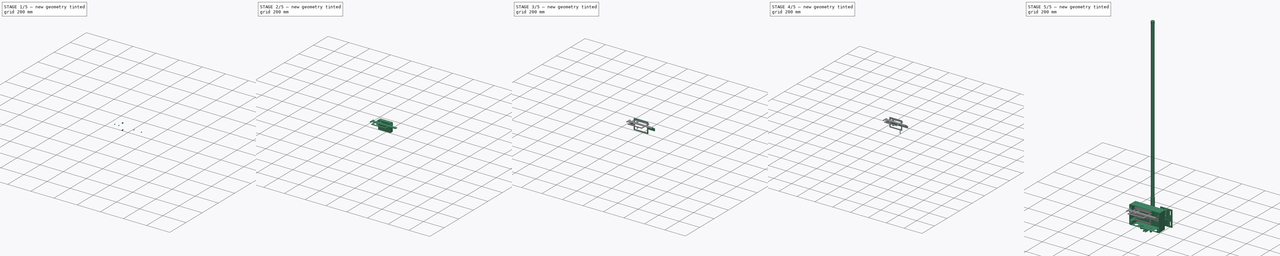
[diagram: build sequence overview — one tinted view per stage of 5, left to right]
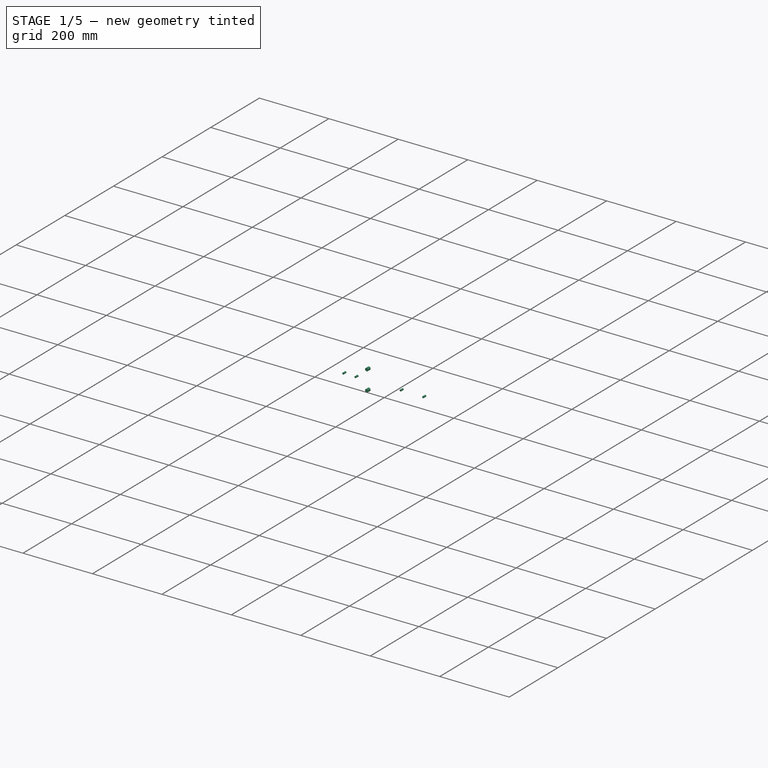
[diagram: stage 1 of 5 — iso view after this stage's code; geometry added in this stage tinted green]
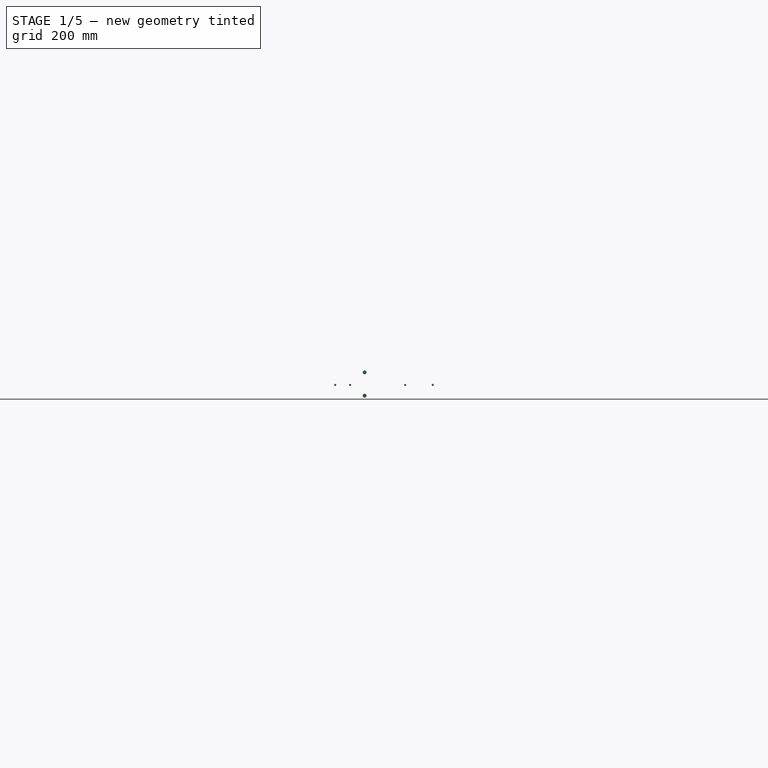
[diagram: stage 1 of 5 — front view after this stage's code; geometry added in this stage tinted green]
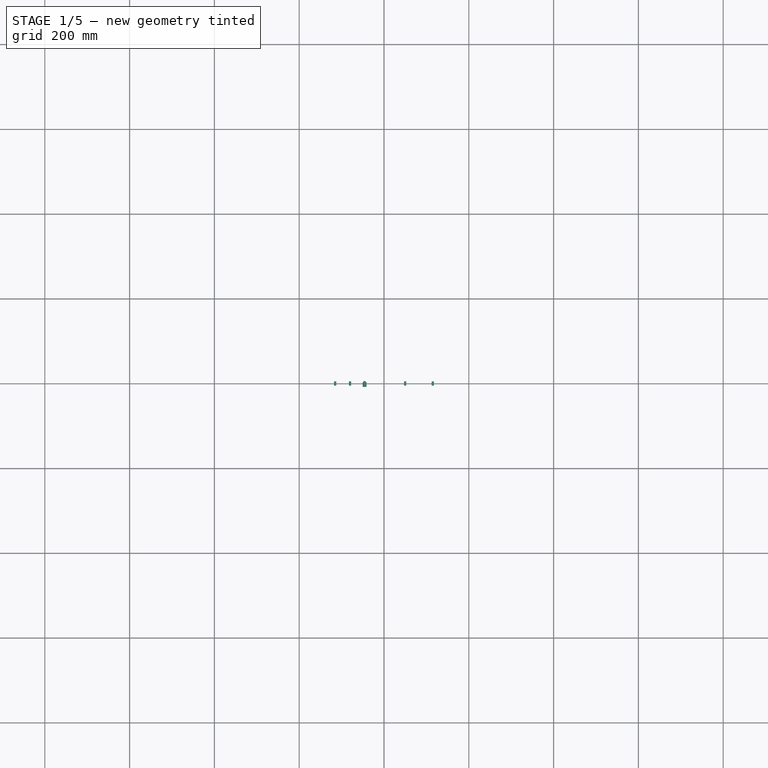
[diagram: stage 1 of 5 — top view after this stage's code; geometry added in this stage tinted green]
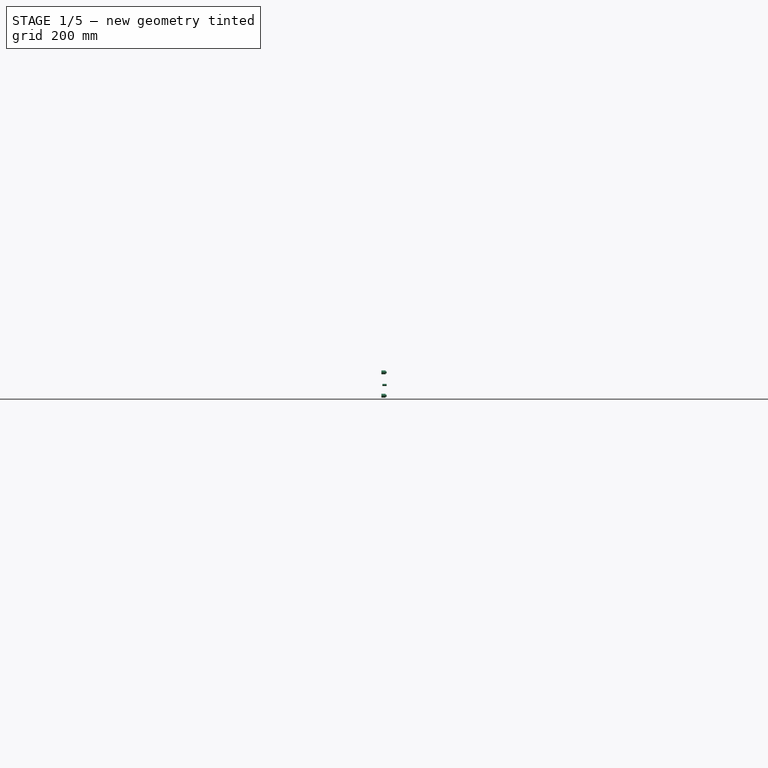
[diagram: stage 1 of 5 — right view after this stage's code; geometry added in this stage tinted green]
FCSTD DOCUMENT  (FreeCAD 0.20R29410 (Git))
Label: gateWayModuleDec_13_2022
License: All rights reserved
LicenseURL: http://en.wikipedia.org/wiki/All_rights_reserved
objects: Part::Cylinder×45, Part::Feature×21, Part::MultiFuse×20, Part::Box×15, Part::Cut×9, App::Part×2, Sketcher::SketchObject×1, Part::Extrusion×1
note: 112 computed .brp shape members not serialized (recipe doc carries the construction recipe); baked Part::Feature solids carry a one-line shape summary decoded from their .brp

FEATURE [Part::Cylinder] Cylinder057
  Angle = 360
  AttacherType = Attacher::AttachEngine3D
  FirstAngle = 0
  Height = 10
  Placement = pos=(-115,0,-31) rot=(1,0,0;1.5708rad)
  Radius = 2.5
  SecondAngle = 0
FEATURE [Part::Cylinder] Cylinder058
  Angle = 360
  AttacherType = Attacher::AttachEngine3D
  FirstAngle = 0
  Height = 10
  Placement = pos=(115,0,-31) rot=(1,0,0;1.5708rad)
  Radius = 2.5
  SecondAngle = 0
FEATURE [Part::Cylinder] Cylinder059
  Angle = 360
  AttacherType = Attacher::AttachEngine3D
  FirstAngle = 0
  Height = 10
  Placement = pos=(-80,0,-31) rot=(1,0,0;1.5708rad)
  Radius = 2.5
  SecondAngle = 0
FEATURE [Part::Cylinder] Cylinder060
  Angle = 360
  AttacherType = Attacher::AttachEngine3D
  FirstAngle = 0
  Height = 10
  Placement = pos=(50,0,-31) rot=(1,0,0;1.5708rad)
  Radius = 2.5
  SecondAngle = 0
FEATURE [Part::Cylinder] Cylinder061
  Angle = 360
  AttacherType = Attacher::AttachEngine3D
  FirstAngle = 0
  Height = 10
  Placement = pos=(-45.75,0,-56.3) rot=(1,0,0;1.5708rad)
  Radius = 2.5
  SecondAngle = 0
FEATURE [Part::Cylinder] Cylinder062
  Angle = 360
  AttacherType = Attacher::AttachEngine3D
  FirstAngle = 0
  Height = 10
  Placement = pos=(-45.75,0,-1.3) rot=(1,0,0;1.5708rad)
  Radius = 2.5
  SecondAngle = 0
FEATURE [Part::Cylinder] Cylinder063
  Angle = 360
  AttacherType = Attacher::AttachEngine3D
  FirstAngle = 0
  Height = 10
  Placement = pos=(-45.75,0,-56.3) rot=(1,0,0;1.5708rad)
  Radius = 4.5
  SecondAngle = 0
FEATURE [Part::Cylinder] Cylinder064
  Angle = 360
  AttacherType = Attacher::AttachEngine3D
  FirstAngle = 0
  Height = 10
  Placement = pos=(-45.75,0,-1.3) rot=(1,0,0;1.5708rad)
  Radius = 4.5
  SecondAngle = 0
FEATURE [Part::Cylinder] Cylinder068
  Angle = 360
  AttacherType = Attacher::AttachEngine3D
  FirstAngle = 0
  Height = 10
  Placement = pos=(-115,0,-31) rot=(1,0,0;1.5708rad)
  Radius = 2.5
  SecondAngle = 0
FEATURE [Part::Cylinder] Cylinder069
  Angle = 360
  AttacherType = Attacher::AttachEngine3D
  FirstAngle = 0
  Height = 10
  Placement = pos=(115,0,-31) rot=(1,0,0;1.5708rad)
  Radius = 2.5
  SecondAngle = 0
FEATURE [Part::Cylinder] Cylinder070
  Angle = 360
  AttacherType = Attacher::AttachEngine3D
  FirstAngle = 0
  Height = 10
  Placement = pos=(-80,0,-31) rot=(1,0,0;1.5708rad)
  Radius = 2.5
  SecondAngle = 0
FEATURE [Part::Cylinder] Cylinder071
  Angle = 360
  AttacherType = Attacher::AttachEngine3D
  FirstAngle = 0
  Height = 10
  Placement = pos=(50,0,-31) rot=(1,0,0;1.5708rad)
  Radius = 2.5
  SecondAngle = 0
FEATURE [Part::Cylinder] Cylinder072
  Angle = 360
  AttacherType = Attacher::AttachEngine3D
  FirstAngle = 0
  Height = 10
  Placement = pos=(-45.75,0,-56.3) rot=(1,0,0;1.5708rad)
  Radius = 2.5
  SecondAngle = 0
FEATURE [Part::Cylinder] Cylinder073
  Angle = 360
  AttacherType = Attacher::AttachEngine3D
  FirstAngle = 0
  Height = 10
  Placement = pos=(-45.75,0,-1.3) rot=(1,0,0;1.5708rad)
  Radius = 2.5
  SecondAngle = 0
FEATURE [Part::MultiFuse] Fusion022  label="M3HeatSetInserts002"
  Placement = pos=(0,5.1,0) rot=(0,0,1;0rad)
  Shapes = -> [Cylinder062,Cylinder058,Cylinder059,Cylinder060,Cylinder061,Cylinder057]
FEATURE [Part::MultiFuse] Fusion023  label="M3BltInput001"
  Placement = pos=(0,2.7,0) rot=(0,0,1;0rad)
  Shapes = -> [Cylinder064,Cylinder063]
FEATURE [Part::MultiFuse] Fusion025  label="M3HeatSetInserts003"
  Placement = pos=(0,5.1,0) rot=(0,0,1;0rad)
  Shapes = -> [Cylinder073,Cylinder069,Cylinder070,Cylinder071,Cylinder072,Cylinder068]
FEATURE [Part::MultiFuse] Fusion026
  Shapes = -> [Fusion022,Fusion023]
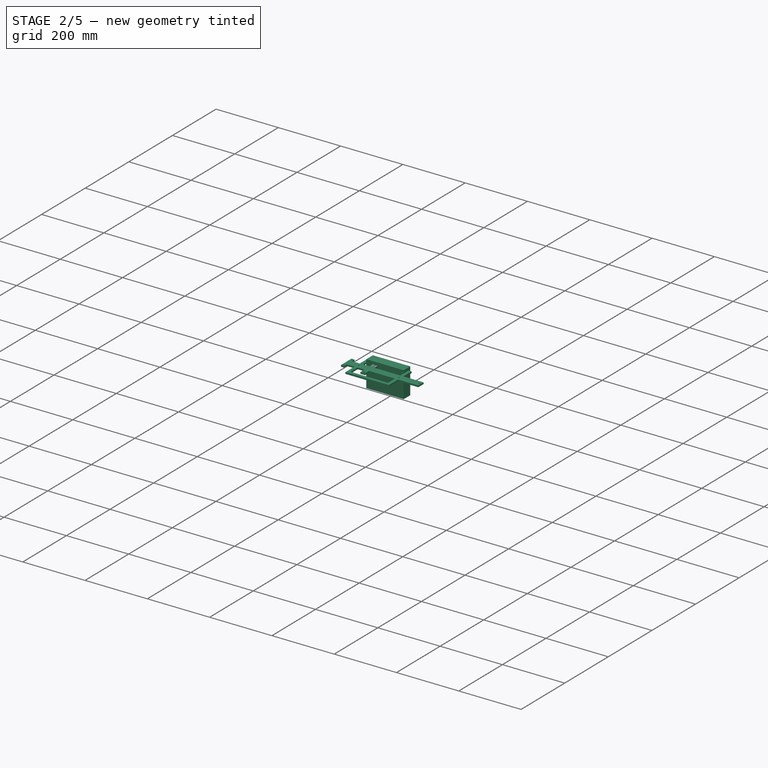
[diagram: stage 2 of 5 — iso view after this stage's code; geometry added in this stage tinted green]
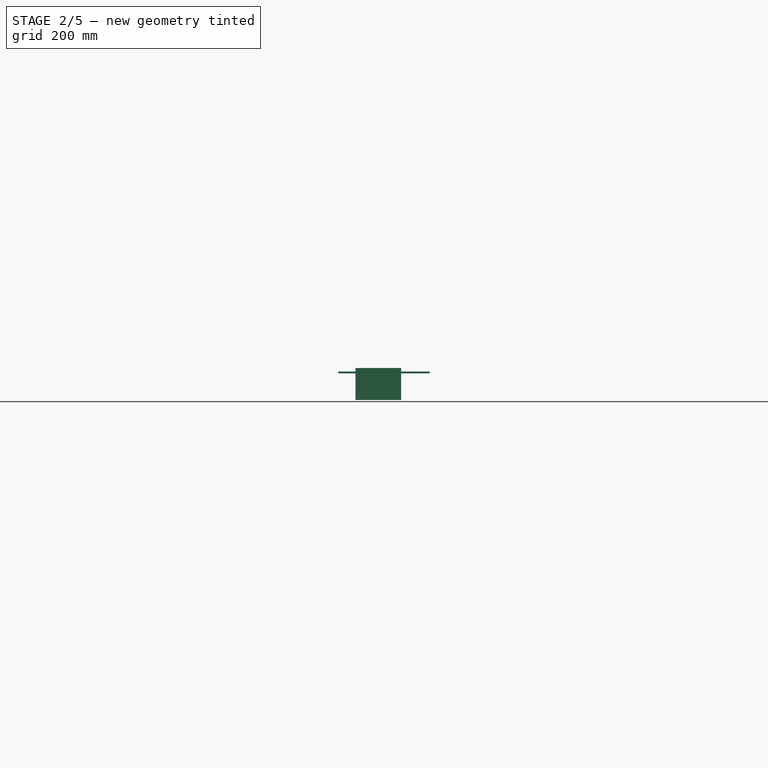
[diagram: stage 2 of 5 — front view after this stage's code; geometry added in this stage tinted green]
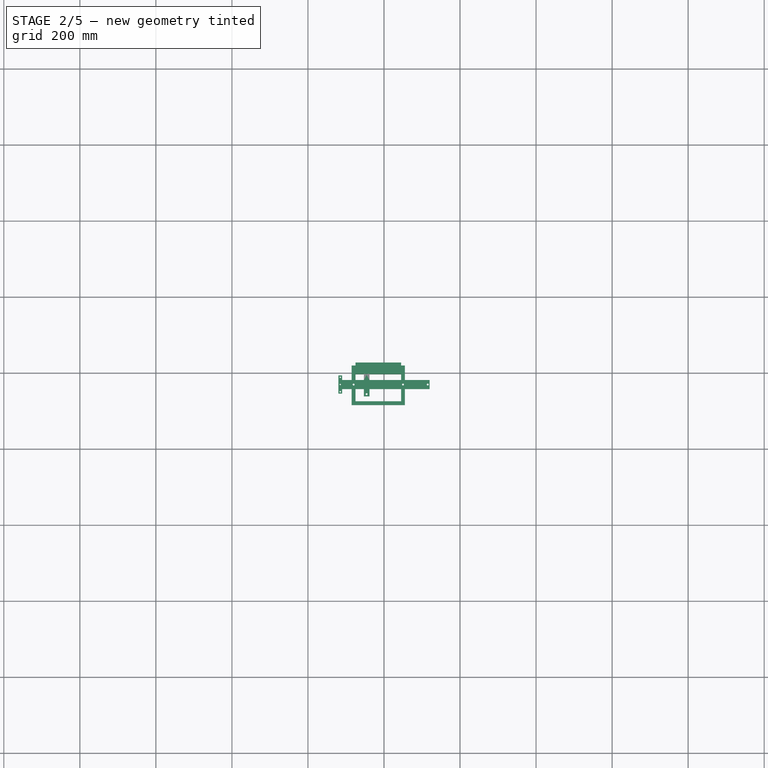
[diagram: stage 2 of 5 — top view after this stage's code; geometry added in this stage tinted green]
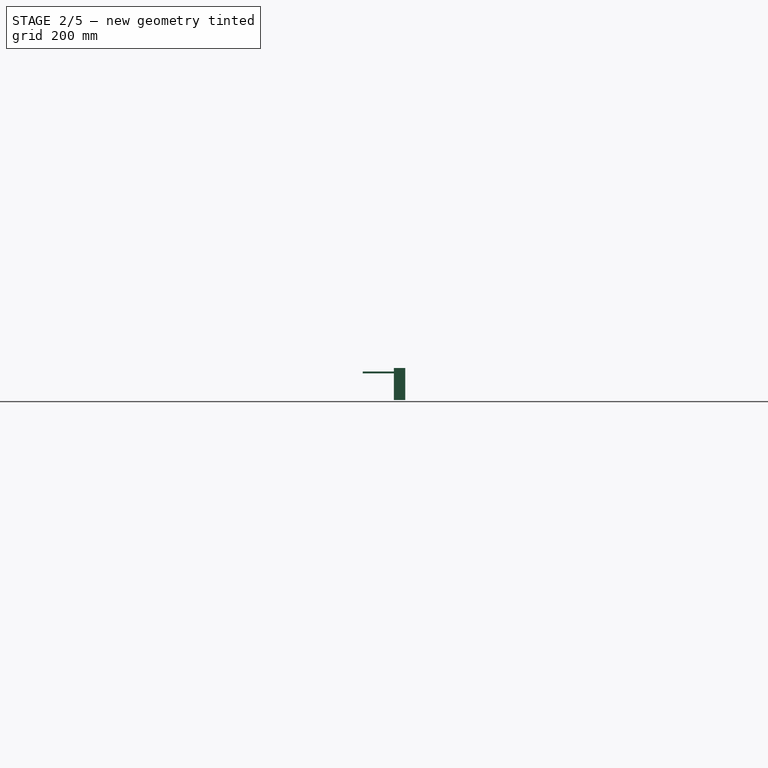
[diagram: stage 2 of 5 — right view after this stage's code; geometry added in this stage tinted green]
FEATURE [Part::Box] Box008  label="GatewayCut"
  AttacherType = Attacher::AttachEngine3D
  Height = 84
  Length = 120
  Placement = pos=(-75,-3.2,-75) rot=(0,0,1;0rad)
  Width = 30
FEATURE [Part::Box] Box009  label="Cube007"
  AttacherType = Attacher::AttachEngine3D
  Height = 24
  Length = 240
  Placement = pos=(-120,0,-43) rot=(0,0,1;0rad)
  Width = 5
FEATURE [Part::Box] Box010  label="Cube008"
  AttacherType = Attacher::AttachEngine3D
  Height = 38
  Length = 140
  Placement = pos=(-85,0,-19) rot=(0,0,1;0rad)
  Width = 5
FEATURE [Part::Box] Box011  label="Cube009"
  AttacherType = Attacher::AttachEngine3D
  Height = 42
  Length = 140
  Placement = pos=(-85,0,-85) rot=(0,0,1;0rad)
  Width = 5
FEATURE [Part::Box] Box012  label="Cube010"
  AttacherType = Attacher::AttachEngine3D
  Height = 24
  Length = 140
  Placement = pos=(-85,0,-43) rot=(0,0,1;0rad)
  Width = 5
FEATURE [Part::Box] Box013  label="Cube011"
  AttacherType = Attacher::AttachEngine3D
  Height = 68
  Length = 15
  Placement = pos=(-53,0,-62) rot=(0,0,1;0rad)
  Width = 5
FEATURE [Part::Box] Box014  label="Cube012"
  AttacherType = Attacher::AttachEngine3D
  Height = 48
  Length = 10
  Placement = pos=(-120,0,-55) rot=(0,0,1;0rad)
  Width = 5
FEATURE [Part::Box] Box015  label="GatewayCut001"
  AttacherType = Attacher::AttachEngine3D
  Height = 84
  Length = 120
  Placement = pos=(-75,-3.2,-75) rot=(0,0,1;0rad)
  Width = 30
FEATURE [Part::Cylinder] Cylinder065
  Angle = 360
  AttacherType = Attacher::AttachEngine3D
  FirstAngle = 0
  Height = 10
  Placement = pos=(-115,0,-31) rot=(1,0,0;1.5708rad)
  Radius = 1.75
  SecondAngle = 0
FEATURE [Part::Cylinder] Cylinder066
  Angle = 360
  AttacherType = Attacher::AttachEngine3D
  FirstAngle = 0
  Height = 10
  Placement = pos=(-115,0,-50) rot=(1,0,0;1.5708rad)
  Radius = 1.9
  SecondAngle = 0
FEATURE [Part::Cylinder] Cylinder067
  Angle = 360
  AttacherType = Attacher::AttachEngine3D
  FirstAngle = 0
  Height = 10
  Placement = pos=(-115,0,-12) rot=(1,0,0;1.5708rad)
  Radius = 1.9
  SecondAngle = 0
FEATURE [Part::MultiFuse] Fusion020
  Shapes = -> [Box011,Box009,Box010]
FEATURE [Part::MultiFuse] Fusion021
  Shapes = -> [Box012,Box013]
FEATURE [Part::MultiFuse] Fusion024  label="sideCuts001"
  Placement = pos=(0,9.8,0) rot=(0,0,1;0rad)
  Shapes = -> [Cylinder065,Cylinder066,Cylinder067]
FEATURE [Part::Cut] Cut005  label="CornerBase001"
  Base = -> Box014
  Placement = pos=(0,0,0) rot=(1,0,0;4.71239rad)
  Tool = -> Fusion024
FEATURE [Part::Cut] Cut007
  Base = -> Fusion020
  Tool = -> Fusion025
FEATURE [Part::Cut] Cut008  label="MainBase001"
  Base = -> Cut007
  Placement = pos=(0,0,0) rot=(1,0,0;4.71239rad)
  Tool = -> Box015
FEATURE [Part::Cut] Cut006  label="PowerBase001"
  Base = -> Fusion021
  Placement = pos=(0,0,0) rot=(1,0,0;4.71239rad)
  Tool = -> Fusion026
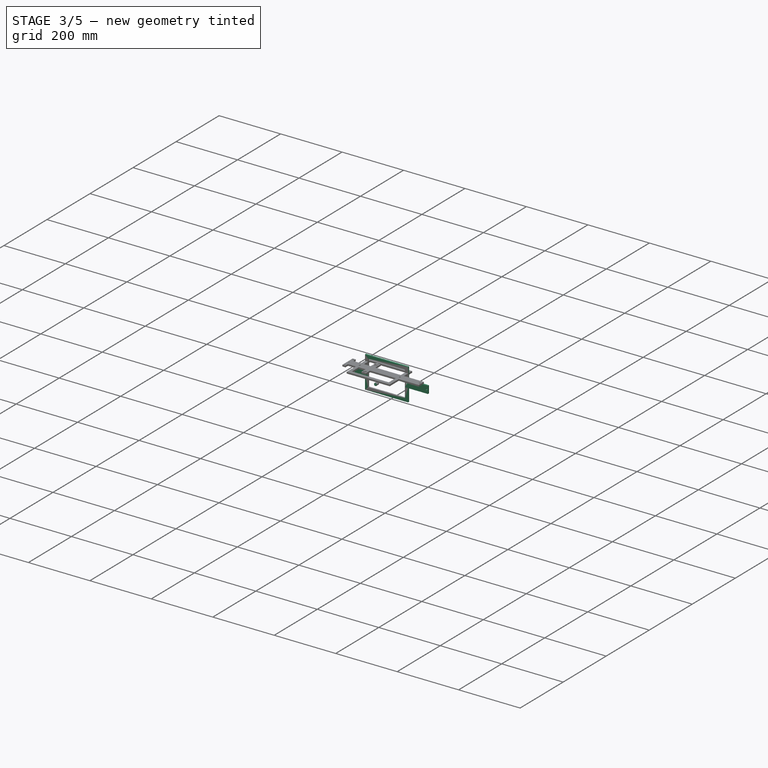
[diagram: stage 3 of 5 — iso view after this stage's code; geometry added in this stage tinted green]
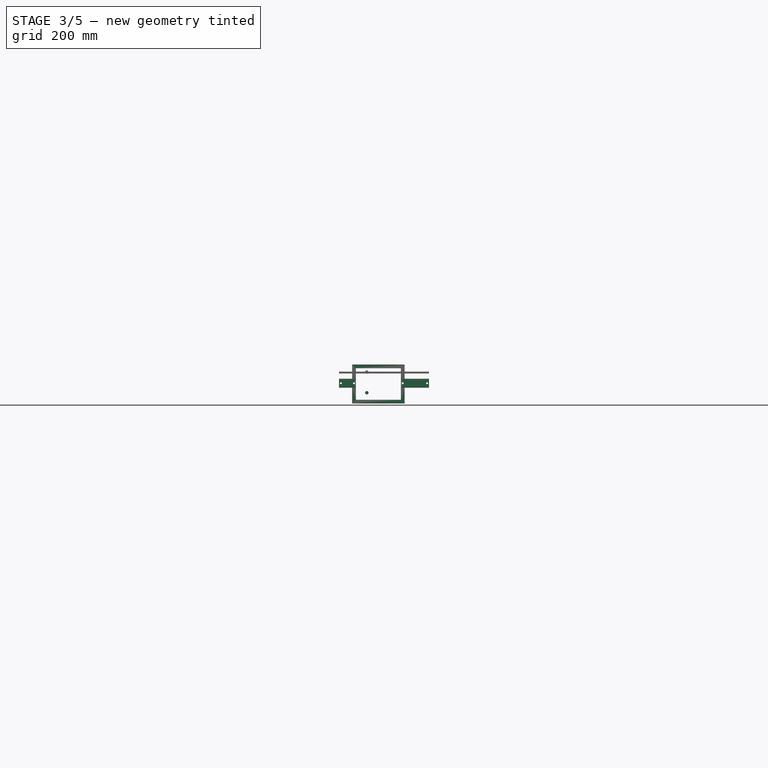
[diagram: stage 3 of 5 — front view after this stage's code; geometry added in this stage tinted green]
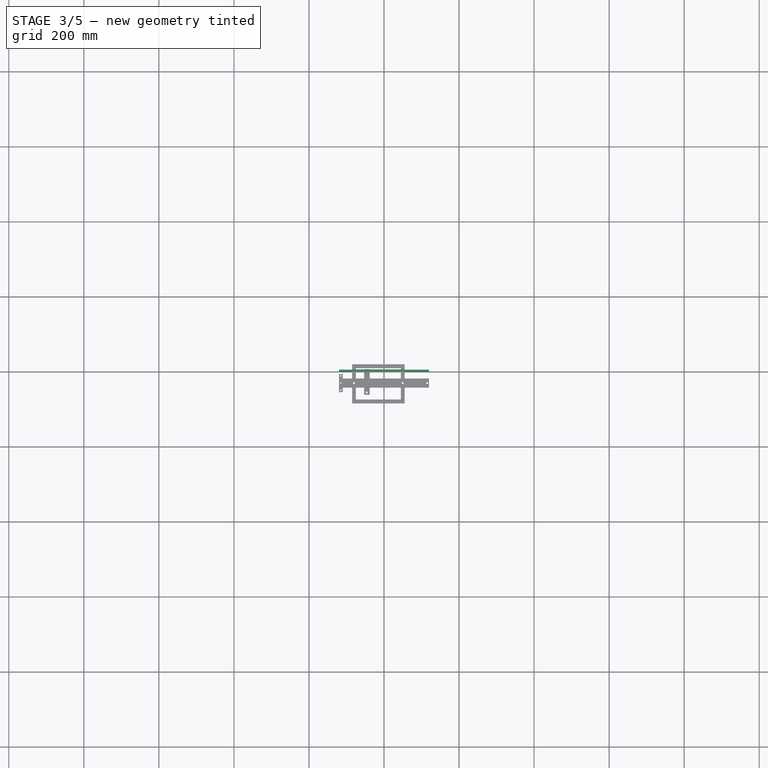
[diagram: stage 3 of 5 — top view after this stage's code; geometry added in this stage tinted green]
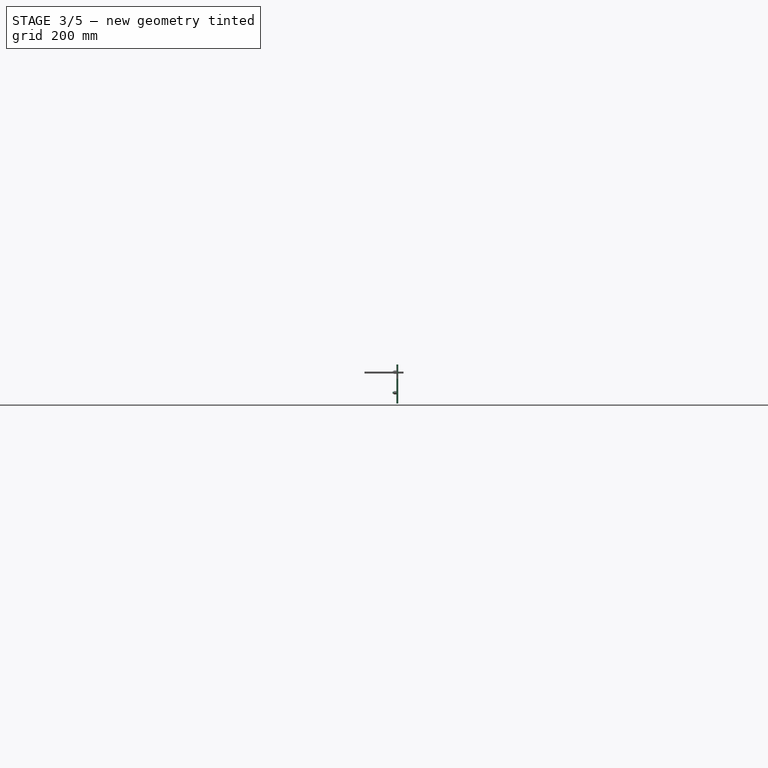
[diagram: stage 3 of 5 — right view after this stage's code; geometry added in this stage tinted green]
FEATURE [Part::Feature] Part__Feature  label="AN-23B_AN-23BP-01"
  shape: bbox 160 x 71.5 x 260 mm, 302 faces (baked)
FEATURE [Part::Feature] Part__Feature034  label="AN-23C_AN-23C-01"
  shape: bbox 160.5 x 20 x 260.5 mm, 243 faces (baked)
FEATURE [Part::Feature] Part__Feature035  label="cross recessed countersunk head screw_jis_JIS 1111 Cross recessed countersunk head screw - M4 x 32 - Z --24CSST"
  Placement = pos=(245.578,1.4369,155.7) rot=(0.642635,-0.642635,0.417181;3.93205rad)
  shape: bbox 8.4 x 32 x 8.4 mm, 32 faces (baked)
FEATURE [Part::Feature] Part__Feature036  label="cross recessed countersunk head screw_jis_JIS 1111 Cross recessed countersunk head screw - M4 x 32 - Z --24CSST001"
  Placement = pos=(245.578,1.4369,15.6996) rot=(0.610522,-0.610522,0.504506;4.07608rad)
  shape: bbox 8.4 x 32 x 8.4 mm, 32 faces (baked)
FEATURE [Part::Feature] Part__Feature037  label="cross recessed countersunk head screw_jis_JIS 1111 Cross recessed countersunk head screw - M4 x 32 - Z --24CSST002"
  Placement = pos=(5.5776,1.4369,15.6996) rot=(0.641113,-0.641113,0.421839;3.93997rad)
  shape: bbox 8.4 x 32 x 8.4 mm, 32 faces (baked)
FEATURE [Part::Feature] Part__Feature038  label="cross recessed countersunk head screw_jis_JIS 1111 Cross recessed countersunk head screw - M4 x 32 - Z --24CSST003"
  Placement = pos=(5.5776,1.4369,155.7) rot=(0.666667,-0.666667,0.333333;3.78509rad)
  shape: bbox 8.4 x 32 x 8.4 mm, 32 faces (baked)
FEATURE [App::Part] SCREWS_036_4  label="SCREWS-036-4"
  Group = -> [Part__Feature035,Part__Feature036,Part__Feature037,Part__Feature038]
  Origin = -> Origin
  Placement = pos=(85.6996,18.1356,-125.578) rot=(0,-1,0;1.5708rad)
FEATURE [Part::Feature] Part__Feature039  label="GASKET-123-01"
  Placement = pos=(0,1.04,0) rot=(0,0,1;0rad)
  shape: bbox 157.7 x 1.5 x 257.7 mm, 98 faces (baked)
FEATURE [App::Part] AN_23P_01  label="AN-23P-01"
  Group = -> [Part__Feature,Part__Feature034,SCREWS_036_4,Part__Feature039]
  Origin = -> Origin001
FEATURE [Part::Box] Box001  label="Cube"
  AttacherType = Attacher::AttachEngine3D
  Height = 24
  Length = 240
  Placement = pos=(-120,0,-43) rot=(0,0,1;0rad)
  Width = 5
FEATURE [Part::Box] Box002  label="Cube001"
  AttacherType = Attacher::AttachEngine3D
  Height = 38
  Length = 140
  Placement = pos=(-85,0,-19) rot=(0,0,1;0rad)
  Width = 5
FEATURE [Part::Box] Box003  label="Cube002"
  AttacherType = Attacher::AttachEngine3D
  Height = 42
  Length = 140
  Placement = pos=(-85,0,-85) rot=(0,0,1;0rad)
  Width = 5
FEATURE [Part::MultiFuse] Fusion013
  Shapes = -> [Box003,Box001,Box002]
FEATURE [Part::Cylinder] Cylinder044
  Angle = 360
  AttacherType = Attacher::AttachEngine3D
  FirstAngle = 0
  Height = 10
  Placement = pos=(-45.75,0,-56.3) rot=(1,0,0;1.5708rad)
  Radius = 2.5
  SecondAngle = 0
FEATURE [Part::Cylinder] Cylinder045
  Angle = 360
  AttacherType = Attacher::AttachEngine3D
  FirstAngle = 0
  Height = 10
  Placement = pos=(-45.75,0,-1.3) rot=(1,0,0;1.5708rad)
  Radius = 2.5
  SecondAngle = 0
FEATURE [Part::Cylinder] Cylinder046
  Angle = 360
  AttacherType = Attacher::AttachEngine3D
  FirstAngle = 0
  Height = 10
  Placement = pos=(-45.75,0,-56.3) rot=(1,0,0;1.5708rad)
  Radius = 4.5
  SecondAngle = 0
FEATURE [Part::Cylinder] Cylinder047
  Angle = 360
  AttacherType = Attacher::AttachEngine3D
  FirstAngle = 0
  Height = 10
  Placement = pos=(-45.75,0,-1.3) rot=(1,0,0;1.5708rad)
  Radius = 4.5
  SecondAngle = 0
FEATURE [Part::MultiFuse] Fusion016  label="M3BltInput"
  Placement = pos=(0,2.7,0) rot=(0,0,1;0rad)
  Shapes = -> [Cylinder047,Cylinder046]
FEATURE [Part::Cylinder] Cylinder051
  Angle = 360
  AttacherType = Attacher::AttachEngine3D
  FirstAngle = 0
  Height = 10
  Placement = pos=(-115,0,-31) rot=(1,0,0;1.5708rad)
  Radius = 2.5
  SecondAngle = 0
FEATURE [Part::Cylinder] Cylinder052
  Angle = 360
  AttacherType = Attacher::AttachEngine3D
  FirstAngle = 0
  Height = 10
  Placement = pos=(115,0,-31) rot=(1,0,0;1.5708rad)
  Radius = 2.5
  SecondAngle = 0
FEATURE [Part::Cylinder] Cylinder053
  Angle = 360
  AttacherType = Attacher::AttachEngine3D
  FirstAngle = 0
  Height = 10
  Placement = pos=(-80,0,-31) rot=(1,0,0;1.5708rad)
  Radius = 2.5
  SecondAngle = 0
FEATURE [Part::Cylinder] Cylinder054
  Angle = 360
  AttacherType = Attacher::AttachEngine3D
  FirstAngle = 0
  Height = 10
  Placement = pos=(50,0,-31) rot=(1,0,0;1.5708rad)
  Radius = 2.5
  SecondAngle = 0
FEATURE [Part::Cylinder] Cylinder055
  Angle = 360
  AttacherType = Attacher::AttachEngine3D
  FirstAngle = 0
  Height = 10
  Placement = pos=(-45.75,0,-56.3) rot=(1,0,0;1.5708rad)
  Radius = 2.5
  SecondAngle = 0
FEATURE [Part::Cylinder] Cylinder056
  Angle = 360
  AttacherType = Attacher::AttachEngine3D
  FirstAngle = 0
  Height = 10
  Placement = pos=(-45.75,0,-1.3) rot=(1,0,0;1.5708rad)
  Radius = 2.5
  SecondAngle = 0
FEATURE [Part::MultiFuse] Fusion018  label="M3HeatSetInserts001"
  Placement = pos=(0,5.1,0) rot=(0,0,1;0rad)
  Shapes = -> [Cylinder056,Cylinder052,Cylinder053,Cylinder054,Cylinder055,Cylinder051]
FEATURE [Part::Cut] Cut003
  Base = -> Fusion013
  Tool = -> Fusion018
FEATURE [Part::Cut] Cut004  label="MainBase"
  Base = -> Cut003
  Tool = -> Box008
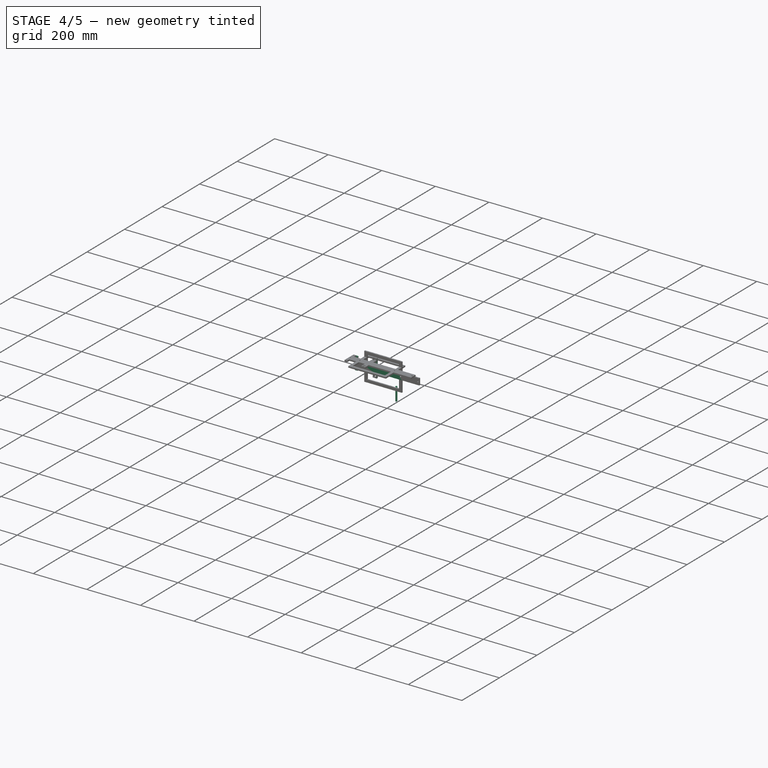
[diagram: stage 4 of 5 — iso view after this stage's code; geometry added in this stage tinted green]
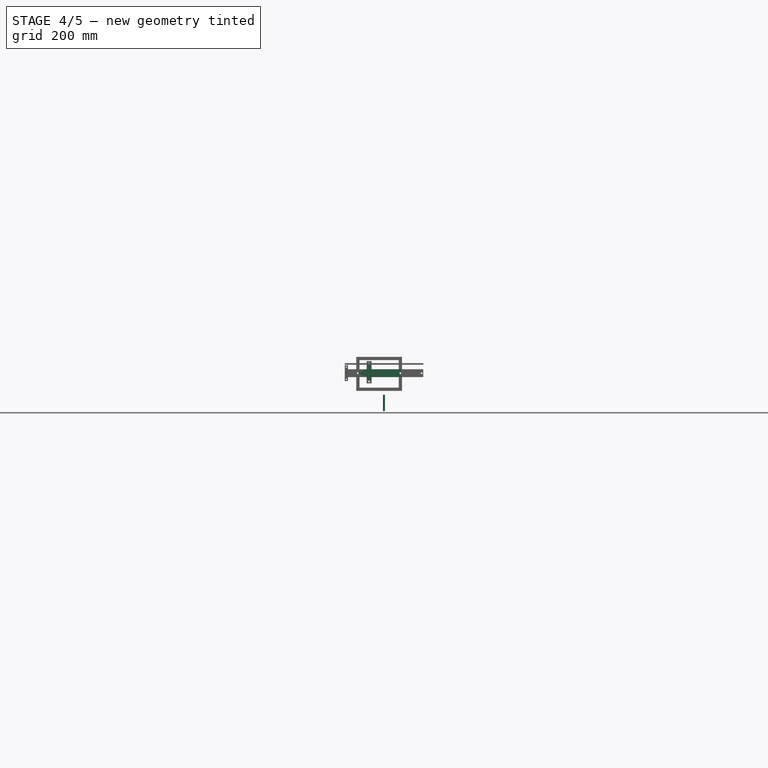
[diagram: stage 4 of 5 — front view after this stage's code; geometry added in this stage tinted green]
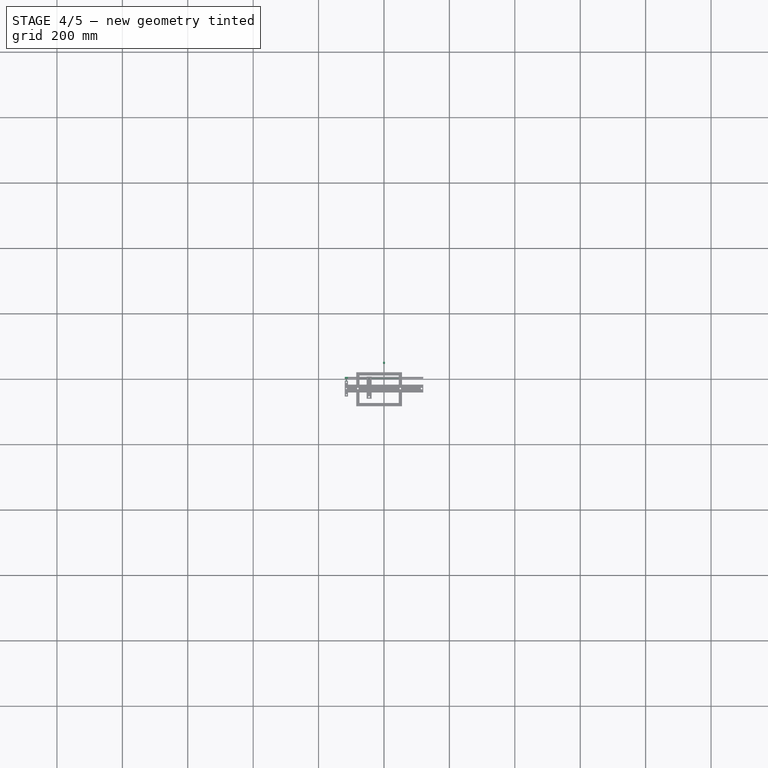
[diagram: stage 4 of 5 — top view after this stage's code; geometry added in this stage tinted green]
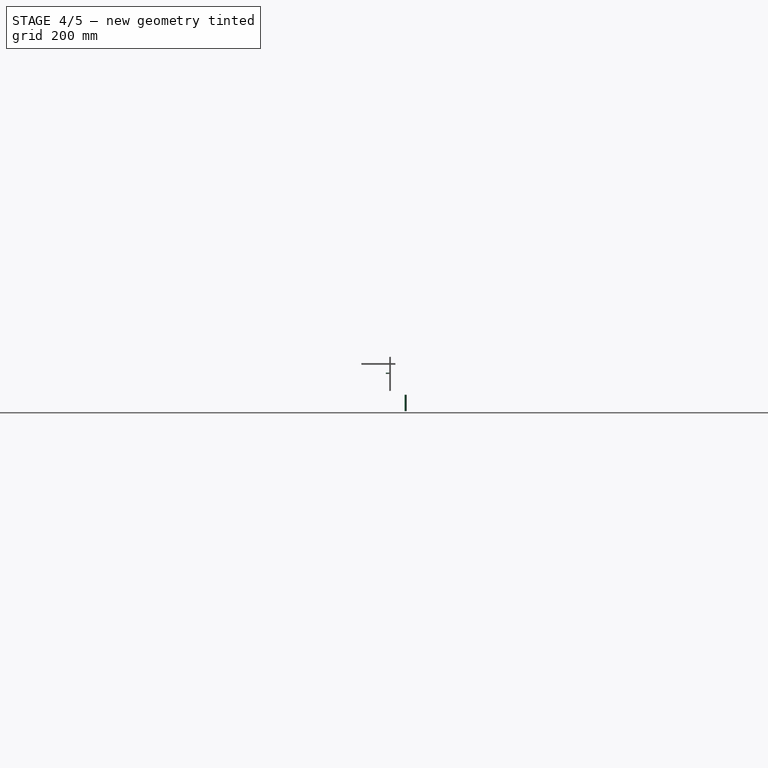
[diagram: stage 4 of 5 — right view after this stage's code; geometry added in this stage tinted green]
FEATURE [Part::Cylinder] Cylinder038  label="m5Cut001"
  Angle = 360
  AttacherType = Attacher::AttachEngine3D
  FirstAngle = 0
  Height = 50
  Placement = pos=(0,50,-147) rot=(0,0,1;0rad)
  Radius = 3.2
  SecondAngle = 0
FEATURE [Part::Box] Box005  label="Cube004"
  AttacherType = Attacher::AttachEngine3D
  Height = 24
  Length = 140
  Placement = pos=(-85,0,-43) rot=(0,0,1;0rad)
  Width = 5
FEATURE [Part::Box] Box006  label="Cube005"
  AttacherType = Attacher::AttachEngine3D
  Height = 68
  Length = 15
  Placement = pos=(-53,0,-62) rot=(0,0,1;0rad)
  Width = 5
FEATURE [Part::MultiFuse] Fusion014
  Shapes = -> [Box005,Box006]
FEATURE [Part::Cylinder] Cylinder039  label="Cylinder"
  Angle = 360
  AttacherType = Attacher::AttachEngine3D
  FirstAngle = 0
  Height = 10
  Placement = pos=(-115,0,-31) rot=(1,0,0;1.5708rad)
  Radius = 2
  SecondAngle = 0
FEATURE [Part::Cylinder] Cylinder040
  Angle = 360
  AttacherType = Attacher::AttachEngine3D
  FirstAngle = 0
  Height = 10
  Placement = pos=(-115,0,-31) rot=(1,0,0;1.5708rad)
  Radius = 2.5
  SecondAngle = 0
FEATURE [Part::Cylinder] Cylinder041
  Angle = 360
  AttacherType = Attacher::AttachEngine3D
  FirstAngle = 0
  Height = 10
  Placement = pos=(115,0,-31) rot=(1,0,0;1.5708rad)
  Radius = 2.5
  SecondAngle = 0
FEATURE [Part::Cylinder] Cylinder042
  Angle = 360
  AttacherType = Attacher::AttachEngine3D
  FirstAngle = 0
  Height = 10
  Placement = pos=(-80,0,-31) rot=(1,0,0;1.5708rad)
  Radius = 2.5
  SecondAngle = 0
FEATURE [Part::Cylinder] Cylinder043
  Angle = 360
  AttacherType = Attacher::AttachEngine3D
  FirstAngle = 0
  Height = 10
  Placement = pos=(50,0,-31) rot=(1,0,0;1.5708rad)
  Radius = 2.5
  SecondAngle = 0
FEATURE [Part::MultiFuse] Fusion015  label="M3HeatSetInserts"
  Placement = pos=(0,5.1,0) rot=(0,0,1;0rad)
  Shapes = -> [Cylinder045,Cylinder041,Cylinder042,Cylinder043,Cylinder044,Cylinder040]
FEATURE [Part::Box] Box007  label="Cube006"
  AttacherType = Attacher::AttachEngine3D
  Height = 48
  Length = 10
  Placement = pos=(-120,0,-55) rot=(0,0,1;0rad)
  Width = 5
FEATURE [Part::Cylinder] Cylinder048
  Angle = 360
  AttacherType = Attacher::AttachEngine3D
  FirstAngle = 0
  Height = 10
  Placement = pos=(-115,0,-31) rot=(1,0,0;1.5708rad)
  Radius = 1.75
  SecondAngle = 0
FEATURE [Part::Cylinder] Cylinder049
  Angle = 360
  AttacherType = Attacher::AttachEngine3D
  FirstAngle = 0
  Height = 10
  Placement = pos=(-115,0,-50) rot=(1,0,0;1.5708rad)
  Radius = 1.9
  SecondAngle = 0
FEATURE [Part::Cylinder] Cylinder050
  Angle = 360
  AttacherType = Attacher::AttachEngine3D
  FirstAngle = 0
  Height = 10
  Placement = pos=(-115,0,-12) rot=(1,0,0;1.5708rad)
  Radius = 1.9
  SecondAngle = 0
FEATURE [Part::MultiFuse] Fusion017  label="sideCuts"
  Placement = pos=(0,9.8,0) rot=(0,0,1;0rad)
  Shapes = -> [Cylinder048,Cylinder049,Cylinder050]
FEATURE [Part::Cut] Cut001  label="CornerBase"
  Base = -> Box007
  Tool = -> Fusion017
FEATURE [Part::MultiFuse] Fusion019
  Shapes = -> [Fusion015,Fusion016]
FEATURE [Part::Cut] Cut002  label="PowerBase"
  Base = -> Fusion014
  Tool = -> Fusion019
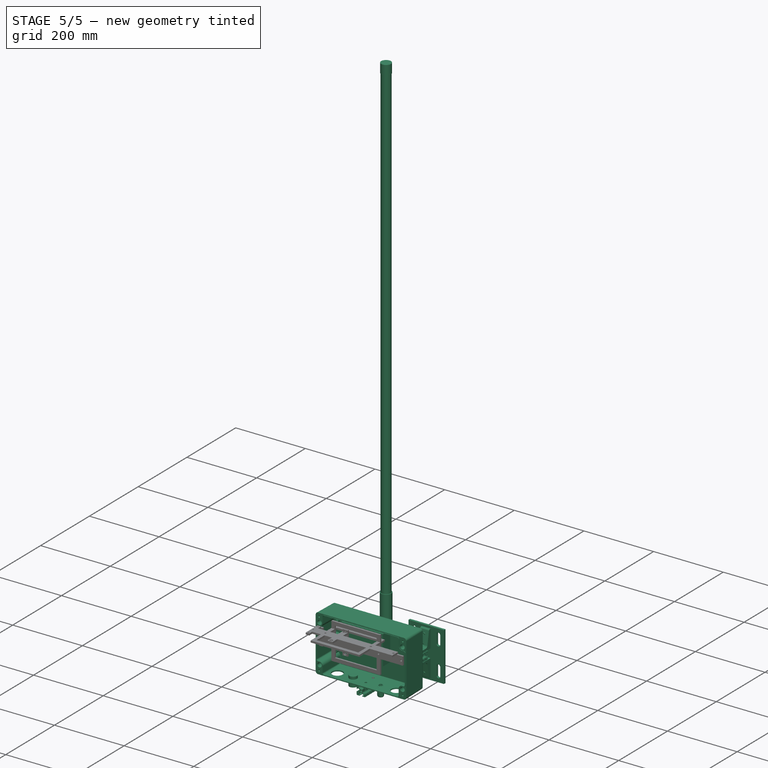
[diagram: stage 5 of 5 — iso view after this stage's code; geometry added in this stage tinted green]
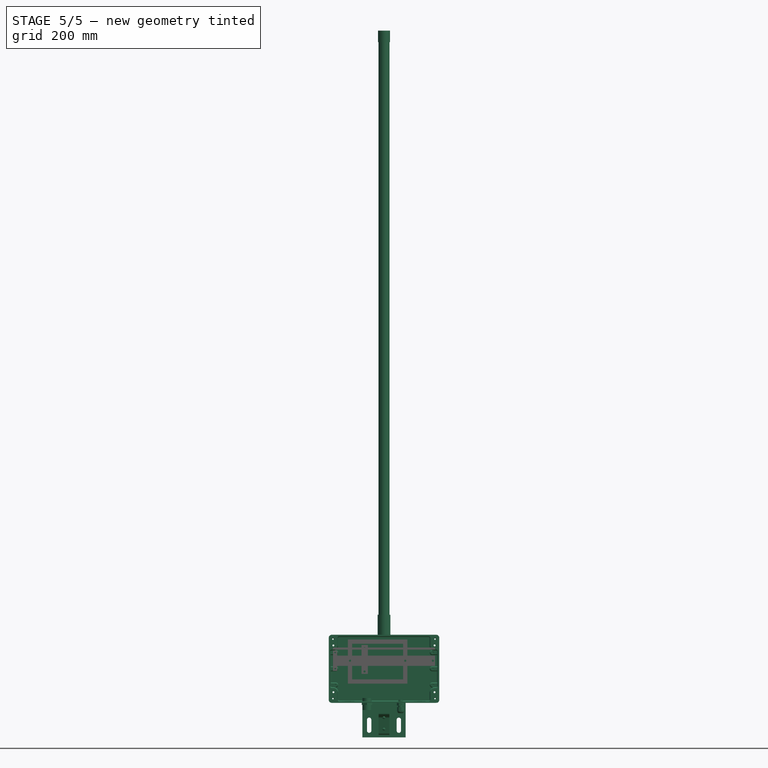
[diagram: stage 5 of 5 — front view after this stage's code; geometry added in this stage tinted green]
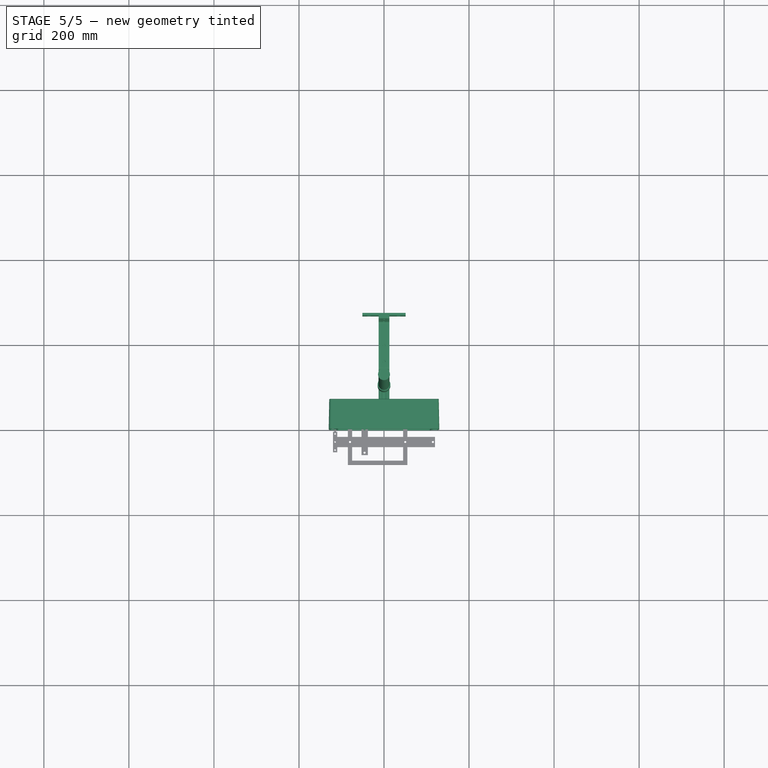
[diagram: stage 5 of 5 — top view after this stage's code; geometry added in this stage tinted green]
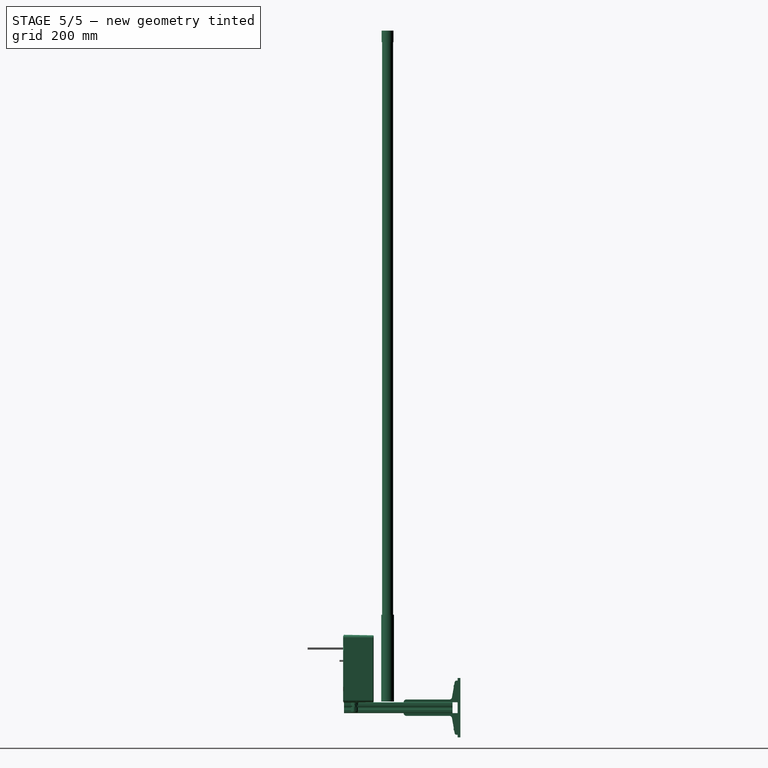
[diagram: stage 5 of 5 — right view after this stage's code; geometry added in this stage tinted green]
FEATURE [Part::Box] Box  label="Gateway"
  AttacherType = Attacher::AttachEngine3D
  Height = 84
  Length = 120
  Placement = pos=(-75,26,-75) rot=(0,0,1;0rad)
  Width = 30
FEATURE [Part::Cylinder] Cylinder030  label="loraAntenna"
  Angle = 360
  AttacherType = Attacher::AttachEngine3D
  FirstAngle = 0
  Height = 1390
  Radius = 13
  SecondAngle = 0
FEATURE [Part::Cylinder] Cylinder031  label="loraAntenna001"
  Angle = 360
  AttacherType = Attacher::AttachEngine3D
  FirstAngle = 0
  Height = 204
  Radius = 15
  SecondAngle = 0
FEATURE [Part::Cylinder] Cylinder032  label="loraAntenna002"
  Angle = 360
  AttacherType = Attacher::AttachEngine3D
  FirstAngle = 0
  Height = 27
  Placement = pos=(0,0,1363) rot=(0,0,1;0rad)
  Radius = 14
  SecondAngle = 0
FEATURE [Part::MultiFuse] Fusion006  label="loraAntenna003"
  Placement = pos=(0,0,188) rot=(0,0,1;0rad)
  Shapes = -> [Cylinder030,Cylinder032]
FEATURE [Part::MultiFuse] Fusion007  label="loraAntenna004"
  Placement = pos=(0,103,-127) rot=(0,0,1;0rad)
  Shapes = -> [Fusion006,Cylinder031]
FEATURE [Part::Feature] Part__Feature008  label="CUI_VGS-25W-5"
  Placement = pos=(-53,23,-36) rot=(1,0,0;3.14159rad)
  shape: bbox 55.36 x 25.53 x 90.37 mm, 2734 faces, 26 solids (baked)
FEATURE [Part::Feature] Part__Feature009  label="DCC-RJ6ST-310"
  Placement = pos=(-85,25,-123) rot=(0,0,1;0rad)
  shape: bbox 40.36 x 68.07 x 51.72 mm, 441 faces (baked)
FEATURE [Part::Feature] Part__Feature010  label="DCP-RJ6ST-F"
  Placement = pos=(-85,25,-123.5) rot=(0,1,0;3.14159rad)
  shape: bbox 40.26 x 40.33 x 38.85 mm, 485 faces, 2 solids (baked)
FEATURE [Part::Cylinder] Cylinder  label="plugIn"
  Angle = 360
  AttacherType = Attacher::AttachEngine3D
  FirstAngle = 0
  Height = 28.19
  Radius = 11
  SecondAngle = 0
FEATURE [Sketcher::SketchObject] Sketch
  FullyConstrained = true
  sketch-geometry (7):
    g0: LineSegment StartX=12.25 StartY=-7.07254 StartZ=0 EndX=12.25 EndY=7.07254 EndZ=0
    g1: LineSegment StartX=12.25 StartY=7.07254 StartZ=0 EndX=0 EndY=14.1451 EndZ=0
    g2: LineSegment StartX=0 StartY=14.1451 StartZ=0 EndX=-12.25 EndY=7.07254 EndZ=0
    g3: LineSegment StartX=-12.25 StartY=7.07254 StartZ=0 EndX=-12.25 EndY=-7.07254 EndZ=0
    g4: LineSegment StartX=-12.25 StartY=-7.07254 StartZ=0 EndX=0 EndY=-14.1451 EndZ=0
    g5: LineSegment StartX=0 StartY=-14.1451 StartZ=0 EndX=12.25 EndY=-7.07254 EndZ=0
    g6: Circle CenterX=0 CenterY=0 CenterZ=0 NormalX=0 NormalY=0 NormalZ=1 AngleXU=0 Radius=14.1451
  constraints (17):
    c: Coincident(g0,g1)
    c: Coincident(g1,g2)
    c: Coincident(g2,g3)
    c: Coincident(g3,g4)
    c: Coincident(g4,g5)
    c: Coincident(g5,g0)
    c: Equal(g0, g1-g5) x5
    c: PointOnObject(g0,g6)
    c: PointOnObject(g1,g6)
    c: PointOnObject(g2,g6)
    c: PointOnObject(g3,g6)
    c: PointOnObject(g4,g6)
    c: PointOnObject(g5,g6)
    c: DistanceY(g6) = 0
    c: DistanceX(g6) = 0
    c: DistanceX(g1) = 0
    c: DistanceX(g2,g0) = 24.5
FEATURE [Part::Extrusion] Extrude
  Base = -> Sketch
  Dir = (0,0,1)
  DirMode = 2
  FaceMakerClass = Part::FaceMakerBullseye
  LengthFwd = 4.83
  LengthRev = 0
  Placement = pos=(0,0,12.19) rot=(0,0,1;0rad)
  Solid = true
  Symmetric = false
FEATURE [Part::MultiFuse] Fusion  label="powerPlug"
  Placement = pos=(-40,25,-147) rot=(0,0,1;0rad)
  Shapes = -> [Cylinder,Extrude]
FEATURE [Part::Feature] Part__Feature021  label="LoRaAntennaGland"
  Placement = pos=(84,25,-120) rot=(-1,0,0;1.5708rad)
  shape: bbox 36.99 x 36.69 x 48.04 mm, 518 faces, 0 solids (baked)
FEATURE [Part::Feature] Part__Feature022  label="3136N138_T-Slotted Framing"
  Placement = pos=(0,200.3,0) rot=(0,0,1;0rad)
  shape: bbox 101.6 x 133.4 x 139.7 mm, 136 faces (baked)
FEATURE [Part::Feature] Part__Feature023  label="47065T801_T-Slotted Framing"
  Placement = pos=(0,288.5,0) rot=(-1,0,0;1.5708rad)
  shape: bbox 25.4 x 152.4 x 25.4 mm, 108 faces (baked)
FEATURE [Part::Feature] Part__Feature024  label="47065T801_T-Slotted Framing001"
  Placement = pos=(0,391.5,0) rot=(-1,0,0;1.5708rad)
  shape: bbox 25.4 x 152.4 x 25.4 mm, 108 faces (baked)
FEATURE [Part::MultiFuse] Fusion008  label="framingSupport"
  Placement = pos=(0,468,-141.41) rot=(0,0,1;3.14159rad)
  Shapes = -> [Part__Feature024,Part__Feature022,Part__Feature023]
FEATURE [Part::Feature] Part__Feature025  label="Cable Gland PG7-PG19 Body_PG008"
  shape: bbox 17.67 x 27.9 x 16 mm, 147 faces (baked)
FEATURE [Part::Feature] Part__Feature026  label="Cable Gland PG7-PG19 Washer_PG008"
  Placement = pos=(0,-2.8,0) rot=(0,0,1;0rad)
  shape: bbox 16.6 x 1.2 x 16.6 mm, 6 faces (baked)
FEATURE [Part::Feature] Part__Feature027  label="Cable Gland PG7-PG19 Lock Nut_PG008"
  Placement = pos=(0,-5.6,0) rot=(0,0,1;3.14159rad)
  shape: bbox 19.6 x 5.77 x 19.6 mm, 32 faces (baked)
FEATURE [Part::Feature] Part__Feature028  label="Cable Gland PG7-PG19 Sleeve_PG008"
  Placement = pos=(0,13.65,0) rot=(0,0,1;0rad)
  shape: bbox 8.4 x 6.7 x 8.4 mm, 6 faces (baked)
FEATURE [Part::Feature] Part__Feature029  label="Cable Gland PG7-PG19 Gland Nut_PG008"
  Placement = pos=(0,10.95,0) rot=(0,-1,0;1.94172rad)
  shape: bbox 16.87 x 14 x 16.87 mm, 64 faces (baked)
FEATURE [Part::MultiFuse] Fusion011  label="pg7-Copper"
  Placement = pos=(39,25,-134) rot=(-1,0,0;1.5708rad)
  Shapes = -> [Part__Feature025,Part__Feature026,Part__Feature027,Part__Feature028,Part__Feature029]
FEATURE [Part::Cylinder] Cylinder033  label="EthernetCut"
  Angle = 360
  AttacherType = Attacher::AttachEngine3D
  FirstAngle = 0
  Height = 50
  Placement = pos=(-85,25,-147) rot=(0,0,1;0rad)
  Radius = 15.1
  SecondAngle = 0
FEATURE [Part::Cylinder] Cylinder034  label="PowerCut"
  Angle = 360
  AttacherType = Attacher::AttachEngine3D
  FirstAngle = 0
  Height = 50
  Placement = pos=(-40,25,-147) rot=(0,0,1;0rad)
  Radius = 11
  SecondAngle = 0
FEATURE [Part::Cylinder] Cylinder035  label="pg7Cut"
  Angle = 360
  AttacherType = Attacher::AttachEngine3D
  FirstAngle = 0
  Height = 50
  Placement = pos=(39,25,-147) rot=(0,0,1;0rad)
  Radius = 6.4
  SecondAngle = 0
FEATURE [Part::Cylinder] Cylinder036  label="AnetnnaCut"
  Angle = 360
  AttacherType = Attacher::AttachEngine3D
  FirstAngle = 0
  Height = 50
  Placement = pos=(84,25,-147) rot=(0,0,1;0rad)
  Radius = 14.2
  SecondAngle = 0
FEATURE [Part::Cylinder] Cylinder037  label="m5Cut"
  Angle = 360
  AttacherType = Attacher::AttachEngine3D
  FirstAngle = 0
  Height = 50
  Placement = pos=(0,20,-147) rot=(0,0,1;0rad)
  Radius = 3.2
  SecondAngle = 0
FEATURE [Part::MultiFuse] Fusion012
  Shapes = -> [Cylinder038,Cylinder037,Cylinder036,Cylinder035,Cylinder033,Cylinder034]
FEATURE [Part::Feature] Part__Feature032  label="AN-23B_AN-23BP-002"
  Placement = pos=(0,0,-50) rot=(0.707107,0,-0.707107;3.14159rad)
  shape: bbox 260 x 71.5 x 160 mm, 302 faces (baked)
FEATURE [Part::Feature] Part__Feature033  label="AN-23C_AN-23C-002"
  Placement = pos=(0,0,-50) rot=(0.707107,0,0.707107;3.14159rad)
  shape: bbox 260.5 x 20 x 160.5 mm, 243 faces (baked)
FEATURE [Part::Cut] Cut
  Base = -> Part__Feature032
  Tool = -> Fusion012
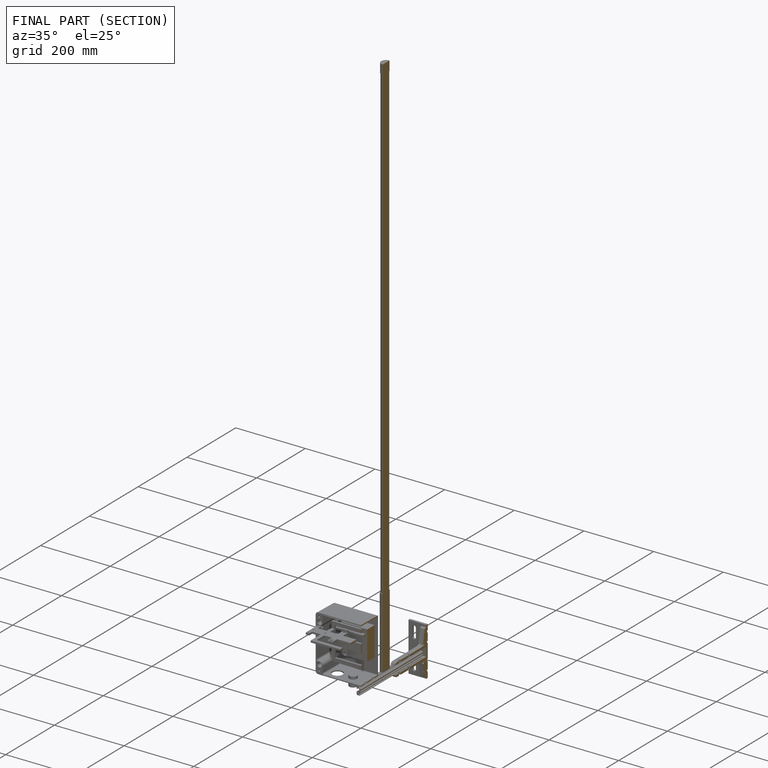
[diagram: finished part — half-section view (interior)]
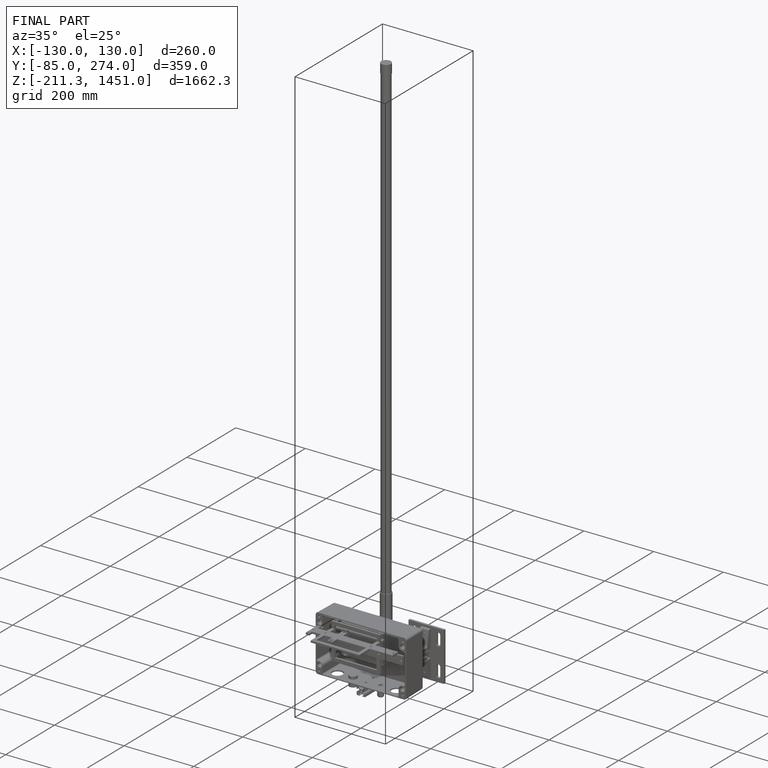
[diagram: finished part — iso view with bounding-box wireframe]
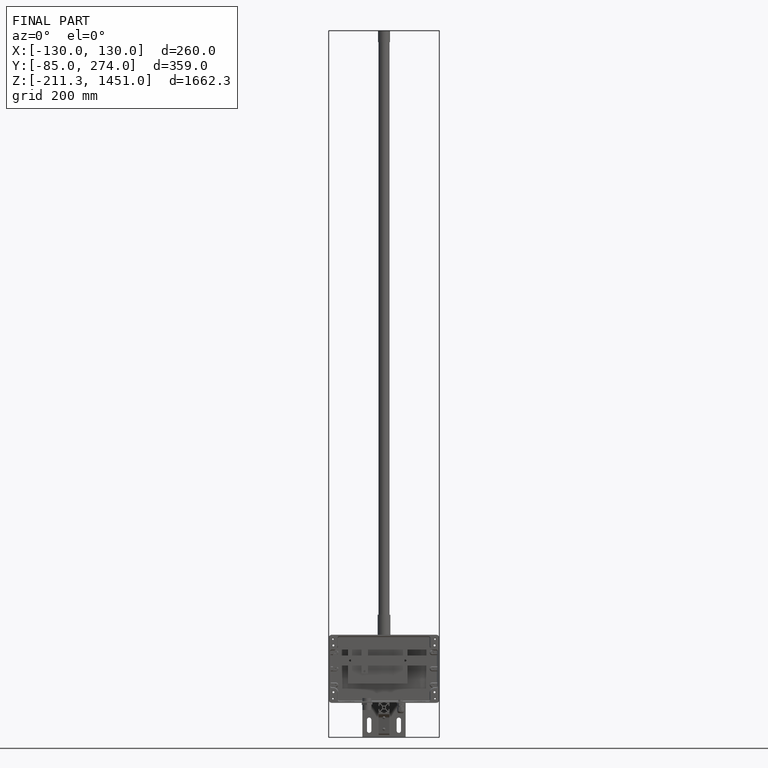
[diagram: finished part — front view with bounding-box wireframe]
